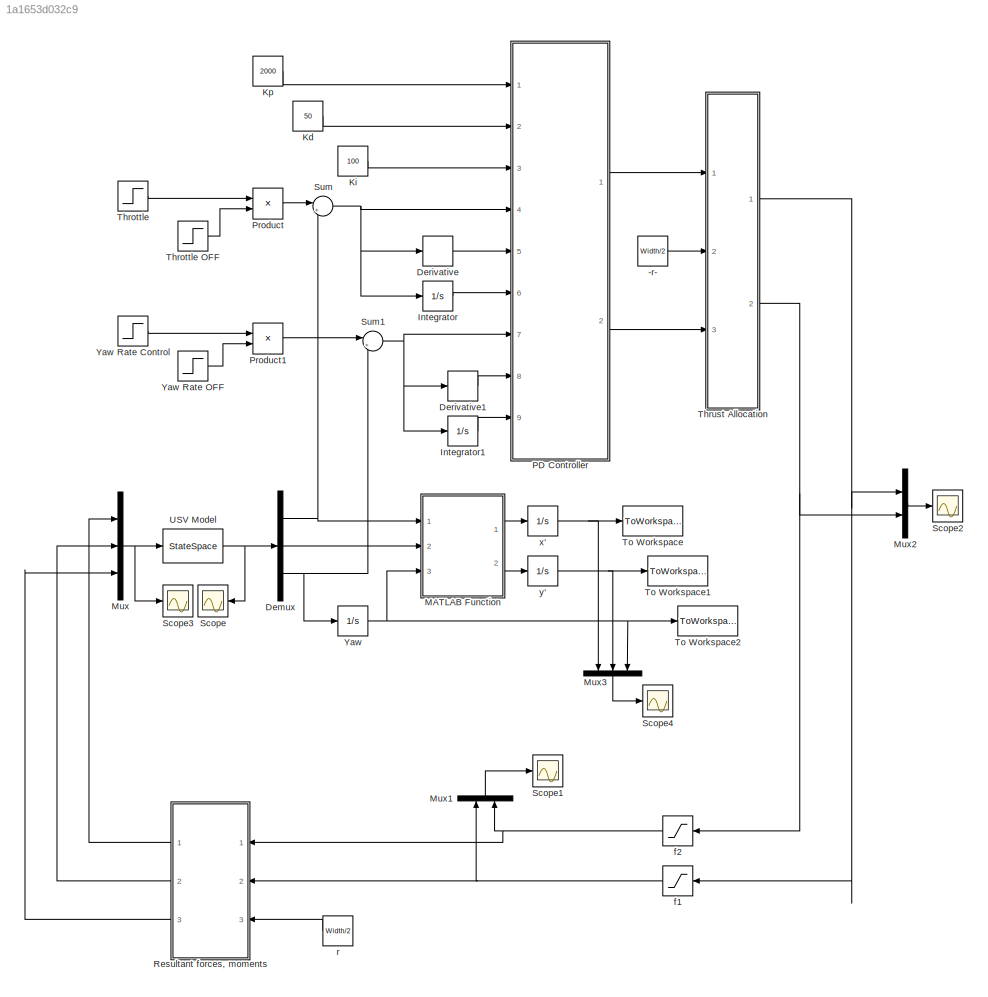
MODEL slx_1a1653d032c9
KIND model
CONFIG AbsTol = auto
CONFIG EnableMultiTasking = off
CONFIG FixedStep = auto
CONFIG MaxStep = auto
CONFIG MinStep = auto
CONFIG RelTol = 1e-3
CONFIG SampleTimeConstraint = Unconstrained
CONFIG Solver = VariableStepAuto
CONFIG SolverName = VariableStepAuto
CONFIG StartTime = 0.0
CONFIG StopTime = 200
BLOCK [Constant] -r- 
  Value = Width/2
BLOCK [Demux] Demux
  DisplayOption = bar
  Outputs = 3
  Ports = [1, 3]
BLOCK [Derivative] Derivative
BLOCK [Derivative] Derivative1
BLOCK [Integrator] Integrator
  Ports = [1, 1]
BLOCK [Integrator] Integrator1
  Ports = [1, 1]
BLOCK [Constant] Kd 
  Value = 50
BLOCK [Constant] Ki
  Value = 100
BLOCK [Constant] Kp
  Value = 2000
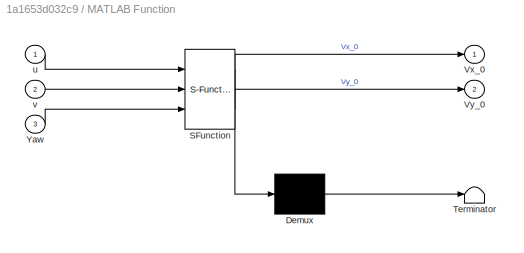
BLOCK [SubSystem] MATLAB Function
  ErrorFcn = Stateflow.Translate.translate
  PermitHierarchicalResolution = ExplicitOnly
  Ports = [3, 2]
  RequestExecContextInheritance = off
  SFBlockType = MATLAB Function
  TreatAsAtomicUnit = on
BLOCK [Demux] MATLAB Function/ Demux 
  Outputs = 1
  Ports = [1, 1]
BLOCK [S-Function] MATLAB Function/ SFunction 
  EnableBusSupport = on
  FunctionName = sf_sfun
  PortCounts = [3 3]
  Ports = [3, 3]
  SFcnIsStateOwnerBlock = off
  SFunctionDeploymentMode = off
  Tag = Stateflow S-Function USV1_Trajectory_Simulink 4
BLOCK [Terminator] MATLAB Function/ Terminator 
BLOCK [Outport] MATLAB Function/Vx_0
  IconDisplay = Port number
BLOCK [Outport] MATLAB Function/Vy_0
  IconDisplay = Port number
  Port = 2
BLOCK [Inport] MATLAB Function/Yaw
  IconDisplay = Port number
  Port = 3
BLOCK [Inport] MATLAB Function/u
  IconDisplay = Port number
BLOCK [Inport] MATLAB Function/v
  IconDisplay = Port number
  Port = 2
BLOCK [Mux] Mux
  DisplayOption = bar
  Inputs = 3
  Ports = [3, 1]
BLOCK [Mux] Mux1
  DisplayOption = bar
  Inputs = 2
  Ports = [2, 1]
BLOCK [Mux] Mux2
  DisplayOption = bar
  Inputs = 2
  Ports = [2, 1]
BLOCK [Mux] Mux3
  DisplayOption = bar
  Inputs = 3
  Ports = [3, 1]
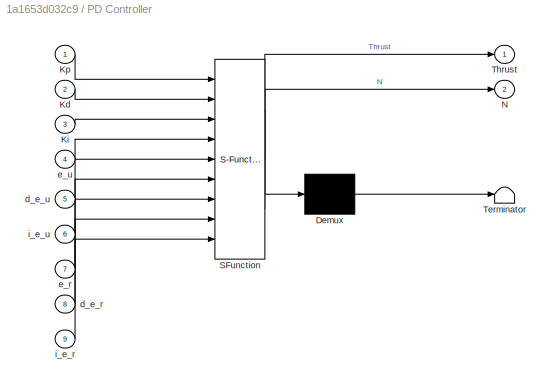
BLOCK [SubSystem] PD Controller
  ErrorFcn = Stateflow.Translate.translate
  PermitHierarchicalResolution = ExplicitOnly
  Ports = [9, 2]
  RequestExecContextInheritance = off
  SFBlockType = MATLAB Function
  TreatAsAtomicUnit = on
BLOCK [Demux] PD Controller/ Demux 
  Outputs = 1
  Ports = [1, 1]
BLOCK [S-Function] PD Controller/ SFunction 
  EnableBusSupport = on
  FunctionName = sf_sfun
  PortCounts = [9 3]
  Ports = [9, 3]
  SFcnIsStateOwnerBlock = off
  SFunctionDeploymentMode = off
  Tag = Stateflow S-Function USV1_Trajectory_Simulink 2
BLOCK [Terminator] PD Controller/ Terminator 
BLOCK [Inport] PD Controller/Kd
  IconDisplay = Port number
  Port = 2
BLOCK [Inport] PD Controller/Ki
  IconDisplay = Port number
  Port = 3
BLOCK [Inport] PD Controller/Kp
  IconDisplay = Port number
BLOCK [Outport] PD Controller/N
  IconDisplay = Port number
  Port = 2
BLOCK [Outport] PD Controller/Thrust
  IconDisplay = Port number
BLOCK [Inport] PD Controller/d_e_r
  IconDisplay = Port number
  Port = 8
BLOCK [Inport] PD Controller/d_e_u
  IconDisplay = Port number
  Port = 5
BLOCK [Inport] PD Controller/e_r
  IconDisplay = Port number
  Port = 7
BLOCK [Inport] PD Controller/e_u
  IconDisplay = Port number
  Port = 4
BLOCK [Inport] PD Controller/i_e_r
  IconDisplay = Port number
  Port = 9
BLOCK [Inport] PD Controller/i_e_u
  IconDisplay = Port number
  Port = 6
BLOCK [Product] Product
  InputSameDT = off
  OutDataTypeStr = Inherit: Inherit via internal rule
  Ports = [2, 1]
  RndMeth = Floor
  SaturateOnIntegerOverflow = off
BLOCK [Product] Product1
  InputSameDT = off
  OutDataTypeStr = Inherit: Inherit via internal rule
  Ports = [2, 1]
  RndMeth = Floor
  SaturateOnIntegerOverflow = off
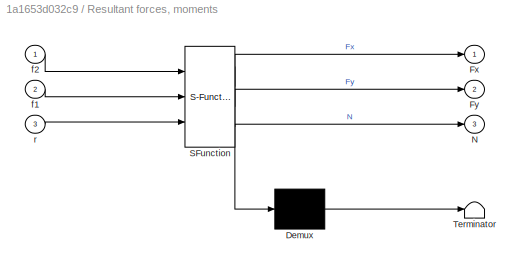
BLOCK [SubSystem] Resultant forces, moments
  ErrorFcn = Stateflow.Translate.translate
  PermitHierarchicalResolution = ExplicitOnly
  Ports = [3, 3]
  RequestExecContextInheritance = off
  SFBlockType = MATLAB Function
  TreatAsAtomicUnit = on
BLOCK [Demux] Resultant forces, moments/ Demux 
  Outputs = 1
  Ports = [1, 1]
BLOCK [S-Function] Resultant forces, moments/ SFunction 
  EnableBusSupport = on
  FunctionName = sf_sfun
  PortCounts = [3 4]
  Ports = [3, 4]
  SFcnIsStateOwnerBlock = off
  SFunctionDeploymentMode = off
  Tag = Stateflow S-Function USV1_Trajectory_Simulink 1
BLOCK [Terminator] Resultant forces, moments/ Terminator 
BLOCK [Outport] Resultant forces, moments/Fx
  IconDisplay = Port number
BLOCK [Outport] Resultant forces, moments/Fy
  IconDisplay = Port number
  Port = 2
BLOCK [Outport] Resultant forces, moments/N
  IconDisplay = Port number
  Port = 3
BLOCK [Inport] Resultant forces, moments/f1
  IconDisplay = Port number
  Port = 2
BLOCK [Inport] Resultant forces, moments/f2
  IconDisplay = Port number
BLOCK [Inport] Resultant forces, moments/r
  IconDisplay = Port number
  Port = 3
BLOCK [Scope] Scope
  Floating = off
  NumInputPorts = 1
  Ports = [1]
  ScopeSpecificationString = Simulink.scopes.TimeScopeBlockCfg('CurrentConfiguration', extmgr.ConfigurationSet(extmgr.Configuration('Core','General UI',true),extmgr.Configuration('Core','Source UI',true),extmgr.Configuration('Sources','WiredSimulink',true),extmgr.Configuration('Visuals','Time Domain',true,'SerializedDisplays',{struct('MinYLimReal','-0.13817','MaxYLimReal','1.02913','YLabelReal','','MinYLimMag','0.00000','MaxY...<+1509ch>
BLOCK [Scope] Scope1
  Floating = off
  NumInputPorts = 1
  Ports = [1]
  ScopeSpecificationString = Simulink.scopes.TimeScopeBlockCfg('CurrentConfiguration', extmgr.ConfigurationSet(extmgr.Configuration('Core','General UI',true),extmgr.Configuration('Core','Source UI',true),extmgr.Configuration('Sources','WiredSimulink',true,'DataLoggingVariableName','ScopeData1'),extmgr.Configuration('Visuals','Time Domain',true,'SerializedDisplays',{struct('MinYLimReal','-12.5','MaxYLimReal','112.5','YLabelRea...<+1500ch>
BLOCK [Scope] Scope2
  Floating = off
  NumInputPorts = 1
  Ports = [1]
  ScopeSpecificationString = Simulink.scopes.TimeScopeBlockCfg('CurrentConfiguration', extmgr.ConfigurationSet(extmgr.Configuration('Core','General UI',true),extmgr.Configuration('Core','Source UI',true),extmgr.Configuration('Sources','WiredSimulink',true,'DataLoggingVariableName','ScopeData2'),extmgr.Configuration('Visuals','Time Domain',true,'SerializedDisplays',{struct('MinYLimReal','-579.4828','MaxYLimReal','1076.88698','...<+1566ch>
BLOCK [Scope] Scope3
  Floating = off
  NumInputPorts = 1
  Ports = [1]
  ScopeSpecificationString = Simulink.scopes.TimeScopeBlockCfg('CurrentConfiguration', extmgr.ConfigurationSet(extmgr.Configuration('Core','General UI',true),extmgr.Configuration('Core','Source UI',true),extmgr.Configuration('Sources','WiredSimulink',true,'DataLoggingVariableName','ScopeData3'),extmgr.Configuration('Visuals','Time Domain',true,'SerializedDisplays',{struct('MinYLimReal','-127.9375','MaxYLimReal','236.4375','YL...<+1604ch>
BLOCK [Scope] Scope4
  Floating = off
  NumInputPorts = 1
  Ports = [1]
  ScopeSpecificationString = Simulink.scopes.TimeScopeBlockCfg('CurrentConfiguration', extmgr.ConfigurationSet(extmgr.Configuration('Core','General UI',true),extmgr.Configuration('Core','Source UI',true),extmgr.Configuration('Sources','WiredSimulink',true,'DataLoggingVariableName','ScopeData1'),extmgr.Configuration('Visuals','Time Domain',true,'SerializedDisplays',{struct('MinYLimReal','-74.32791','MaxYLimReal','63.20091','YL...<+1528ch>
BLOCK [Sum] Sum
  IconShape = round
  InputSameDT = off
  Inputs = |+-
  OutDataTypeStr = Inherit: Inherit via internal rule
  Ports = [2, 1]
  SaturateOnIntegerOverflow = off
BLOCK [Sum] Sum1
  IconShape = round
  InputSameDT = off
  Inputs = |+-
  OutDataTypeStr = Inherit: Inherit via internal rule
  Ports = [2, 1]
  SaturateOnIntegerOverflow = off
BLOCK [Step] Throttle
  After = 0.9
  SampleTime = 10
BLOCK [Step] Throttle OFF
  Before = 1
  SampleTime = 30
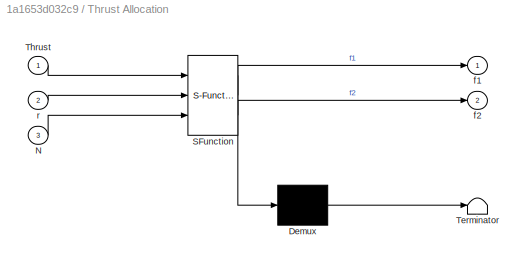
BLOCK [SubSystem] Thrust Allocation
  ErrorFcn = Stateflow.Translate.translate
  PermitHierarchicalResolution = ExplicitOnly
  Ports = [3, 2]
  RequestExecContextInheritance = off
  SFBlockType = MATLAB Function
  TreatAsAtomicUnit = on
BLOCK [Demux] Thrust Allocation/ Demux 
  Outputs = 1
  Ports = [1, 1]
BLOCK [S-Function] Thrust Allocation/ SFunction 
  EnableBusSupport = on
  FunctionName = sf_sfun
  PortCounts = [3 3]
  Ports = [3, 3]
  SFcnIsStateOwnerBlock = off
  SFunctionDeploymentMode = off
  Tag = Stateflow S-Function USV1_Trajectory_Simulink 3
BLOCK [Terminator] Thrust Allocation/ Terminator 
BLOCK [Inport] Thrust Allocation/N
  IconDisplay = Port number
  Port = 3
BLOCK [Inport] Thrust Allocation/Thrust
  IconDisplay = Port number
BLOCK [Outport] Thrust Allocation/f1
  IconDisplay = Port number
BLOCK [Outport] Thrust Allocation/f2
  IconDisplay = Port number
  Port = 2
BLOCK [Inport] Thrust Allocation/r
  IconDisplay = Port number
  Port = 2
BLOCK [ToWorkspace] To Workspace
  FixptAsFi = on
  MaxDataPoints = inf
  Ports = [1]
  SampleTime = -1
  Save2DSignal = 3-D array (concatenate along third dimension)
  VariableName = x_0
BLOCK [ToWorkspace] To Workspace1
  FixptAsFi = on
  MaxDataPoints = inf
  Ports = [1]
  SampleTime = -1
  Save2DSignal = 3-D array (concatenate along third dimension)
  VariableName = y_0
BLOCK [ToWorkspace] To Workspace2
  FixptAsFi = on
  MaxDataPoints = inf
  Ports = [1]
  SampleTime = -1
  Save2DSignal = 3-D array (concatenate along third dimension)
  VariableName = Yaw
BLOCK [StateSpace] USV Model
  A = A
  B = B
  C = C
  D = D
  InitialCondition = Condition
  Ports = [1, 1]
BLOCK [Integrator] Yaw
  Ports = [1, 1]
BLOCK [Step] Yaw Rate Control
  After = 0.17
  SampleTime = 60
BLOCK [Step] Yaw Rate OFF
  After = 0
  Before = 1
  SampleTime = 80
BLOCK [Saturate] f1
  InputPortMap = u0
  LowerLimit = 0
  Ports = [1, 1]
  UpperLimit = 100
BLOCK [Saturate] f2
  InputPortMap = u0
  LowerLimit = 0
  Ports = [1, 1]
  UpperLimit = 100
BLOCK [Constant] r
  Value = Width/2
BLOCK [Integrator] x'
  Ports = [1, 1]
BLOCK [Integrator] y'
  Ports = [1, 1]
LINE -r- :1 -> Thrust Allocation:2
NET Demux:1 -> MATLAB Function:1, Sum:2
LINE Demux:2 -> MATLAB Function:2
NET Demux:3 -> Sum1:2, Yaw:1
LINE Derivative1:1 -> PD Controller:8
LINE Derivative:1 -> PD Controller:5
LINE Integrator1:1 -> PD Controller:9
LINE Integrator:1 -> PD Controller:6
LINE Kd :1 -> PD Controller:2
LINE Ki:1 -> PD Controller:3
LINE Kp:1 -> PD Controller:1
LINE MATLAB Function:1 -> x':1
LINE MATLAB Function:2 -> y':1
LINE Mux1:1 -> Scope1:1
LINE Mux2:1 -> Scope2:1
LINE Mux3:1 -> Scope4:1
NET Mux:1 -> Scope3:1, USV Model:1
LINE PD Controller:1 -> Thrust Allocation:1
LINE PD Controller:2 -> Thrust Allocation:3
LINE Product1:1 -> Sum1:1
LINE Product:1 -> Sum:1
LINE Resultant forces, moments:1 -> Mux:1
LINE Resultant forces, moments:2 -> Mux:2
LINE Resultant forces, moments:3 -> Mux:3
NET Sum1:1 -> Derivative1:1, Integrator1:1, PD Controller:7
NET Sum:1 -> Derivative:1, Integrator:1, PD Controller:4
LINE Throttle OFF:1 -> Product:2
LINE Throttle:1 -> Product:1
NET Thrust Allocation:1 -> Mux2:1, f1:1
NET Thrust Allocation:2 -> Mux2:2, f2:1
NET USV Model:1 -> Demux:1, Scope:1
LINE Yaw Rate Control:1 -> Product1:1
LINE Yaw Rate OFF:1 -> Product1:2
NET Yaw:1 -> MATLAB Function:3, Mux3:3, To Workspace2:1
NET f1:1 -> Mux1:1, Resultant forces, moments:2
NET f2:1 -> Mux1:2, Resultant forces, moments:1
LINE r:1 -> Resultant forces, moments:3
NET x':1 -> Mux3:1, To Workspace:1
NET y':1 -> Mux3:2, To Workspace1:1
note: NET lines group one-source signal fan-out (src -> all destinations, sorted); 1:1 wires keep LINE
CHART Resultant forces, moments states=1 transitions=1
  STATE_LABEL 'eML_blk_kernel()'
  STATE_LABEL 'SCRIPT:\nfunction [Fx,Fy,N] = fcn(f2,f1,r)\n\nFx = f1 + f2;\nFy = 0;\nN = f1*r - f2*r;'
CHART PD Controller states=1 transitions=1
  STATE_LABEL 'eML_blk_kernel()'
  STATE_LABEL 'SCRIPT:\nfunction [Thrust, N] = fcn(Kp, Kd, Ki, e_u,d_e_u,i_e_u, e_r,d_e_r,i_e_r)\n\nThrust = (e_u * Kp) + (d_e_u * Kd) + (i_e_u * Ki);\nN = (e_r * Kp) + (d_e_r * Kd) + (i_e_r * Ki);\n'
CHART Thrust Allocation states=1 transitions=1
  STATE_LABEL 'eML_blk_kernel()'
  STATE_LABEL 'SCRIPT:\nfunction [f1,f2] = fcn(Thrust, r, N)\n\nf1 = Thrust/2 + N/r;\nf2 = Thrust/2 - N/r;\n'
CHART MATLAB Function states=1 transitions=1
  STATE_LABEL 'eML_blk_kernel()'
  STATE_LABEL 'SCRIPT:\nfunction [Vx_0 , Vy_0 ] = fcn(u, v, Yaw)\n\nVx_0 =  cos(Yaw)*u - sin(Yaw)*v ;\nVy_0 =  sin(Yaw)*u + cos(Yaw)*v ;\n\n\n'
